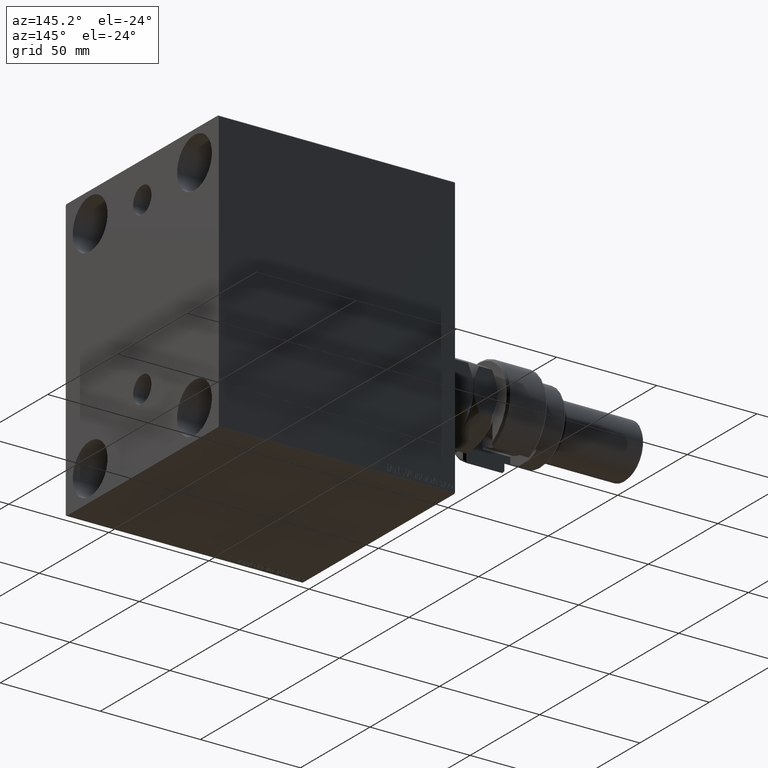
[diagram: clean part render]
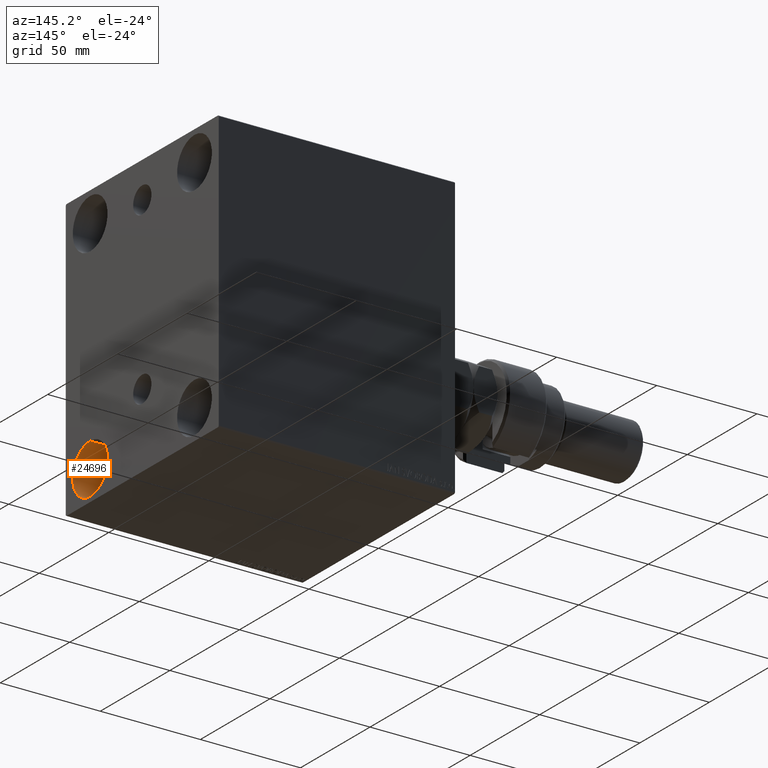
[diagram: same view with one face highlighted and labeled with its STEP entity id]
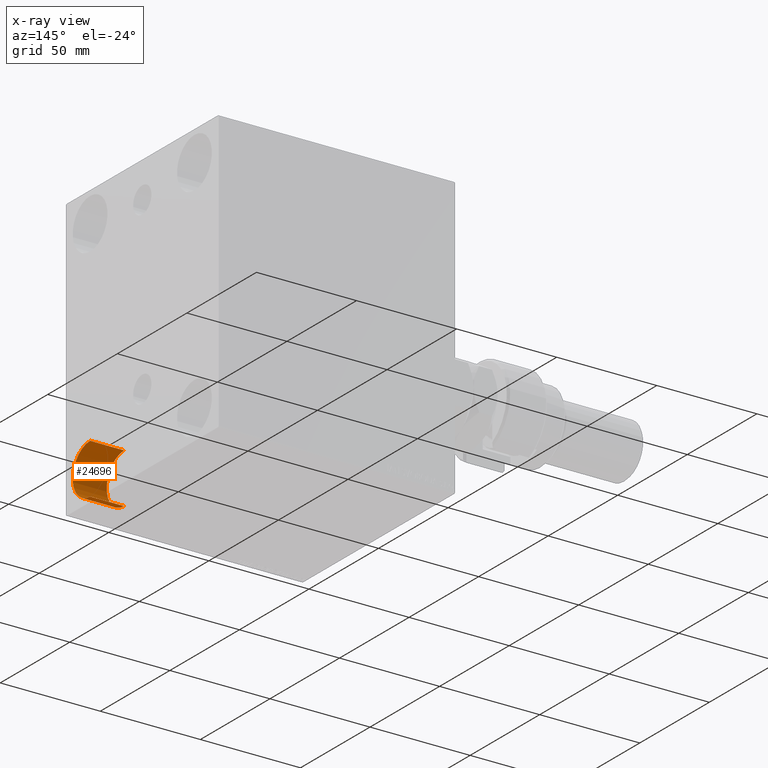
[diagram: x-ray of the same camera — body ghosted, the highlighted face saturated]
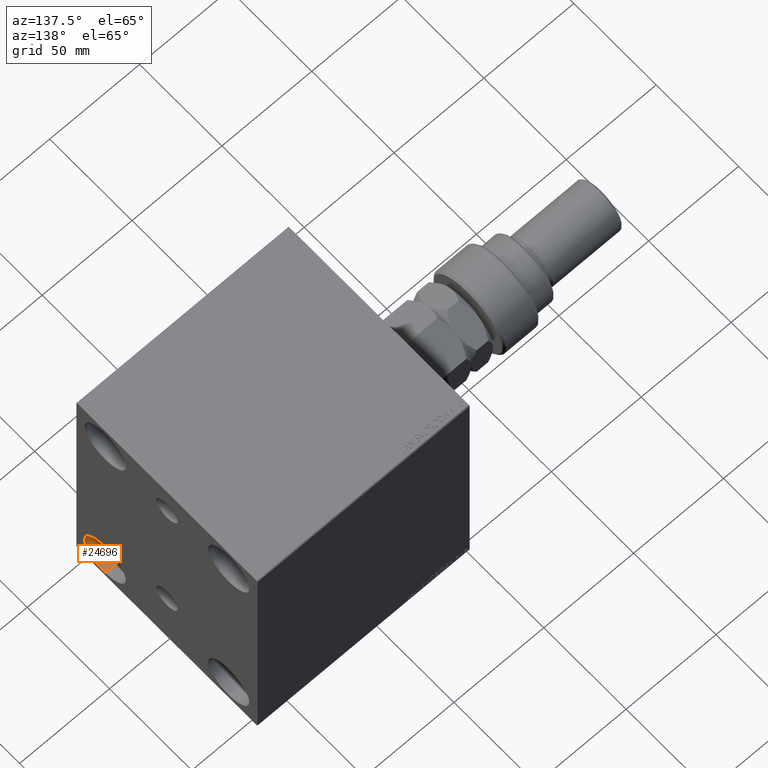
[diagram: same view with one face highlighted and labeled with its STEP entity id]
A machine part, auxiliary view. The second image highlights one B-rep face of the part: STEP entity #24696.
The next image is the same camera in x-ray: the body ghosted, the highlighted face saturated — about 0% of this face is hidden behind the body in this view.
A second angle (auxiliary view) of the same face is appended — the face is thin or edge-on in the first view.
In plain terms, the highlighted cylindrical surface (edge-blend (fillet) strip) has radius 12.5 mm, axis along (1, 0, 0).
Its self-contained STEP definition (entity closure, byte-faithful):
#80 = VERTEX_POINT ( 'NONE', #30708 ) ;
#749 = AXIS2_PLACEMENT_3D ( 'NONE', #3229, #17607, #28691 ) ;
#1681 = ORIENTED_EDGE ( 'NONE', *, *, #22986, .F. ) ;
#2189 = DIRECTION ( 'NONE',  ( 1.000000000000000000, -0.000000000000000000, -0.000000000000000000 ) ) ;
#2785 = VERTEX_POINT ( 'NONE', #20835 ) ;
#3229 = CARTESIAN_POINT ( 'NONE',  ( 100.9999999999999858, -37.50000000000002132, -54.99999999999999289 ) ) ;
#4174 = LINE ( 'NONE', #22338, #45086 ) ;
#6076 = DIRECTION ( 'NONE',  ( 1.000000000000000000, -0.000000000000000000, -0.000000000000000000 ) ) ;
#6370 = CARTESIAN_POINT ( 'NONE',  ( 118.0000000000000000, -37.50000000000002132, -54.99999999999999289 ) ) ;
#9961 = EDGE_CURVE ( 'NONE', #18556, #2785, #21743, .T. ) ;
#12425 = ORIENTED_EDGE ( 'NONE', *, *, #28609, .T. ) ;
#12505 = EDGE_LOOP ( 'NONE', ( #12425, #15715, #32367, #1681 ) ) ;
#15092 = CARTESIAN_POINT ( 'NONE',  ( 118.0000000000000000, -37.50000000000002132, -67.49999999999998579 ) ) ;
#15715 = ORIENTED_EDGE ( 'NONE', *, *, #36656, .T. ) ;
#17202 = DIRECTION ( 'NONE',  ( -1.000000000000000000, -0.000000000000000000, -0.000000000000000000 ) ) ;
#17607 = DIRECTION ( 'NONE',  ( -1.000000000000000000, -0.000000000000000000, -0.000000000000000000 ) ) ;
#18556 = VERTEX_POINT ( 'NONE', #15092 ) ;
#20835 = CARTESIAN_POINT ( 'NONE',  ( 118.0000000000000000, -37.50000000000002132, -42.49999999999999289 ) ) ;
#21743 = CIRCLE ( 'NONE', #43608, 12.49999999999999645 ) ;
#22338 = CARTESIAN_POINT ( 'NONE',  ( 100.9999999999999858, -37.50000000000002132, -67.49999999999998579 ) ) ;
#22559 = CARTESIAN_POINT ( 'NONE',  ( 100.9999999999999858, -37.50000000000002132, -42.49999999999999289 ) ) ;
#22986 = EDGE_CURVE ( 'NONE', #80, #18556, #4174, .T. ) ;
#23441 = LINE ( 'NONE', #44935, #45380 ) ;
#23999 = FACE_OUTER_BOUND ( 'NONE', #12505, .T. ) ;
#24454 = DIRECTION ( 'NONE',  ( 0.000000000000000000, 0.000000000000000000, -1.000000000000000000 ) ) ;
#24696 = ADVANCED_FACE ( 'NONE', ( #23999 ), #38406, .F. ) ;
#26099 = DIRECTION ( 'NONE',  ( 1.000000000000000000, -0.000000000000000000, -0.000000000000000000 ) ) ;
#28609 = EDGE_CURVE ( 'NONE', #80, #35613, #32381, .T. ) ;
#28691 = DIRECTION ( 'NONE',  ( 0.000000000000000000, 0.000000000000000000, 1.000000000000000000 ) ) ;
#30708 = CARTESIAN_POINT ( 'NONE',  ( 100.9999999999999858, -37.50000000000002132, -67.49999999999998579 ) ) ;
#31301 = CARTESIAN_POINT ( 'NONE',  ( 100.9999999999999858, -37.50000000000002132, -54.99999999999999289 ) ) ;
#32367 = ORIENTED_EDGE ( 'NONE', *, *, #9961, .F. ) ;
#32381 = CIRCLE ( 'NONE', #749, 12.49999999999999645 ) ;
#33071 = AXIS2_PLACEMENT_3D ( 'NONE', #31301, #6076, #24454 ) ;
#35613 = VERTEX_POINT ( 'NONE', #22559 ) ;
#36656 = EDGE_CURVE ( 'NONE', #35613, #2785, #23441, .T. ) ;
#38406 = CYLINDRICAL_SURFACE ( 'NONE', #33071, 12.49999999999999645 ) ;
#43608 = AXIS2_PLACEMENT_3D ( 'NONE', #6370, #17202, #45104 ) ;
#44935 = CARTESIAN_POINT ( 'NONE',  ( 100.9999999999999858, -37.50000000000002132, -42.49999999999999289 ) ) ;
#45086 = VECTOR ( 'NONE', #26099, 1000.000000000000000 ) ;
#45104 = DIRECTION ( 'NONE',  ( 0.000000000000000000, 0.000000000000000000, 1.000000000000000000 ) ) ;
#45380 = VECTOR ( 'NONE', #2189, 1000.000000000000000 ) ;